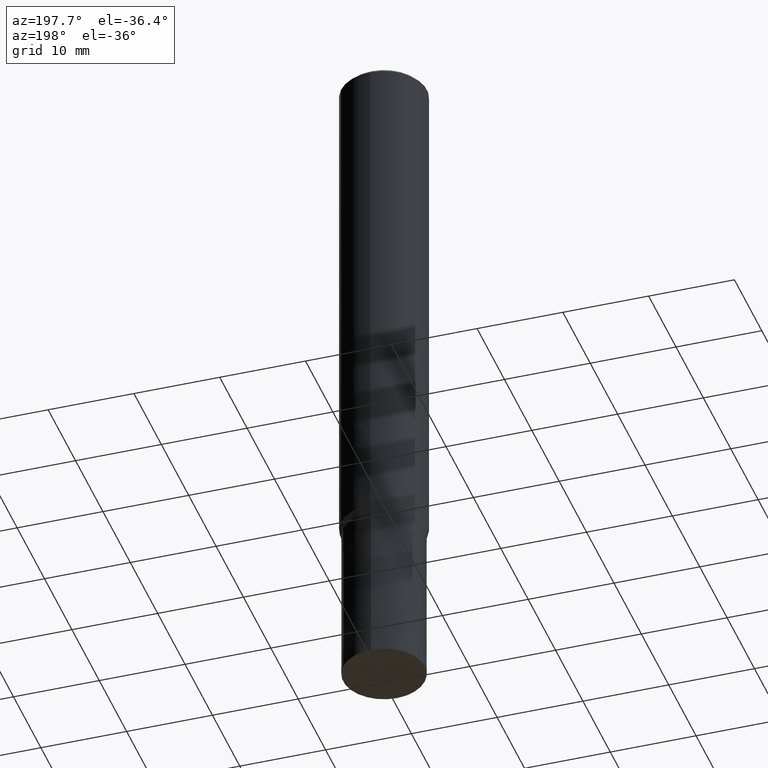
[diagram: clean part render]
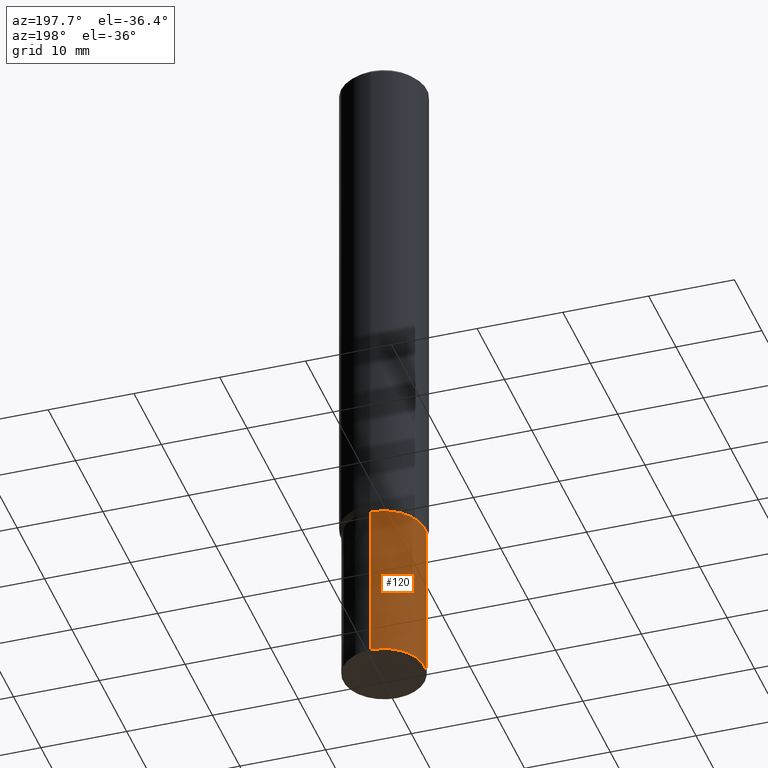
[diagram: same view with one face highlighted and labeled with its STEP entity id]
A machine part, auxiliary view. The second image highlights one B-rep face of the part: STEP entity #120.
In plain terms, the highlighted conical surface has half-angle 0 deg.
Its self-contained STEP definition (entity closure, byte-faithful):
#94=VERTEX_POINT('',#215);
#102=VERTEX_POINT('',#224);
#120=ADVANCED_FACE('',(#244),#245,.T.);
#128=EDGE_CURVE('',#94,#170,#254,.T.);
#152=VERTEX_POINT('',#284);
#154=EDGE_CURVE('',#102,#152,#286,.T.);
#158=EDGE_CURVE('',#170,#102,#290,.T.);
#160=EDGE_CURVE('',#94,#152,#292,.T.);
#170=VERTEX_POINT('',#304);
#215=CARTESIAN_POINT('',(5.81688018065629E-016,-4.75,-80.0));
#224=CARTESIAN_POINT('',(0.0,4.7499,-61.0));
#244=FACE_OUTER_BOUND('',#378,.T.);
#245=CONICAL_SURFACE('',#379,4.74995,5.26315789467598E-006);
#254=LINE('',#390,#391);
#284=CARTESIAN_POINT('',(0.0,4.75,-80.0));
#286=LINE('',#427,#428);
#290=CIRCLE('',#432,4.7499);
#292=CIRCLE('',#435,4.75);
#304=CARTESIAN_POINT('',(5.81675772002091E-016,-4.7499,-61.0));
#378=EDGE_LOOP('',(#520,#521,#522,#523));
#379=AXIS2_PLACEMENT_3D('',#524,#525,#526);
#390=CARTESIAN_POINT('',(5.8168189503386E-016,-4.74995,-70.5));
#391=VECTOR('',#538,1.0);
#427=CARTESIAN_POINT('',(-5.8168189503386E-016,4.74995,-70.5));
#428=VECTOR('',#585,1.0);
#432=AXIS2_PLACEMENT_3D('',#587,#588,#589);
#435=AXIS2_PLACEMENT_3D('',#590,#591,#592);
#520=ORIENTED_EDGE('',*,*,#154,.T.);
#521=ORIENTED_EDGE('',*,*,#160,.F.);
#522=ORIENTED_EDGE('',*,*,#128,.T.);
#523=ORIENTED_EDGE('',*,*,#158,.T.);
#524=CARTESIAN_POINT('',(0.0,0.0,-70.5));
#525=DIRECTION('',(0.0,-0.0,-1.0));
#526=DIRECTION('',(0.0,1.0,0.0));
#538=DIRECTION('',(-6.44529659896085E-022,5.26315789465168E-006,0.99999999998615));
#585=DIRECTION('',(-6.44529659896086E-022,5.26315789465168E-006,-0.99999999998615));
#587=CARTESIAN_POINT('',(0.0,0.0,-61.0));
#588=DIRECTION('',(0.0,0.0,-1.0));
#589=DIRECTION('',(0.0,1.0,0.0));
#590=CARTESIAN_POINT('',(0.0,0.0,-80.0));
#591=DIRECTION('',(0.0,0.0,-1.0));
#592=DIRECTION('',(0.0,1.0,0.0));